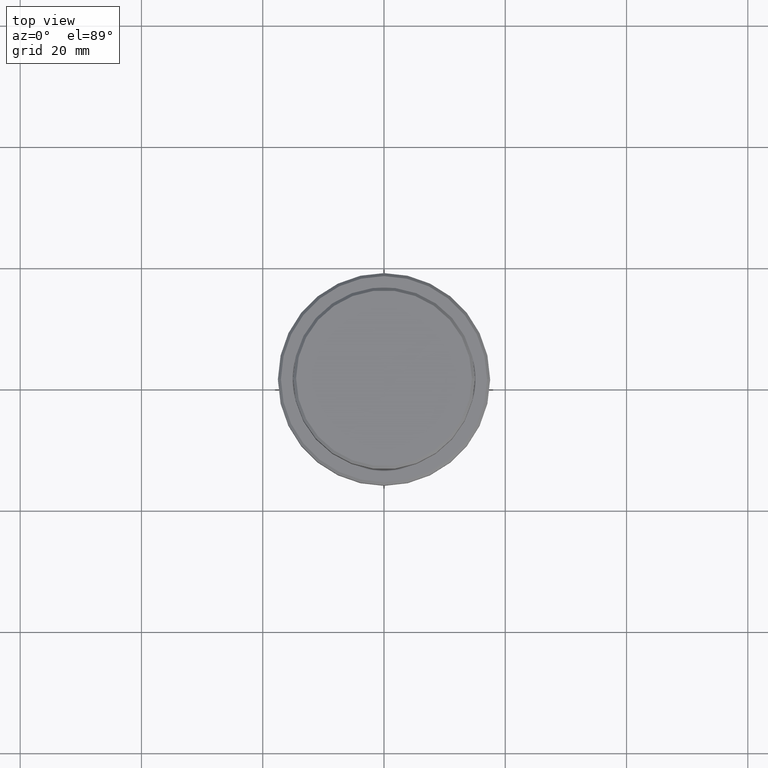
[diagram: clean part render]
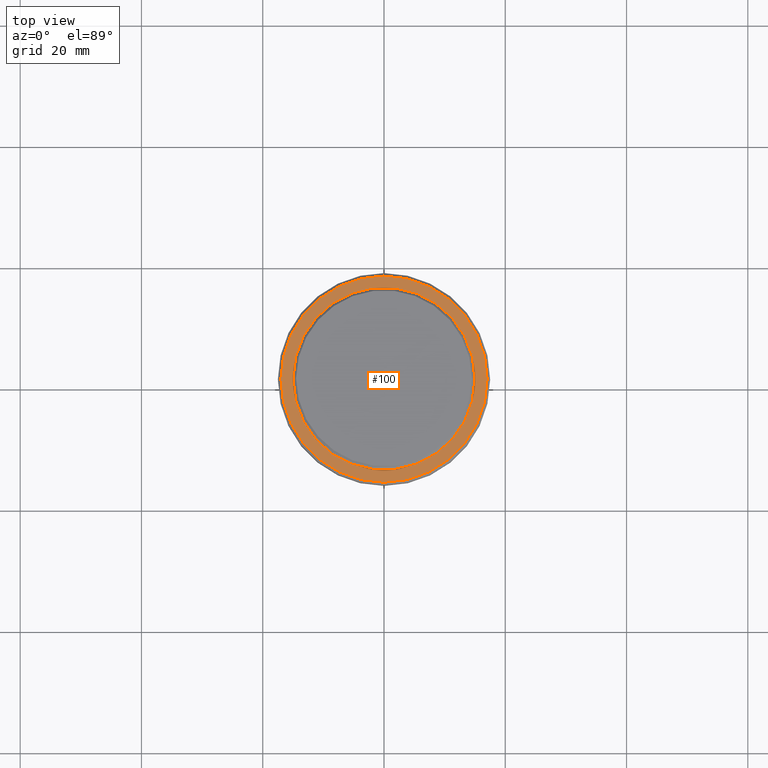
[diagram: same view with one face highlighted and labeled with its STEP entity id]
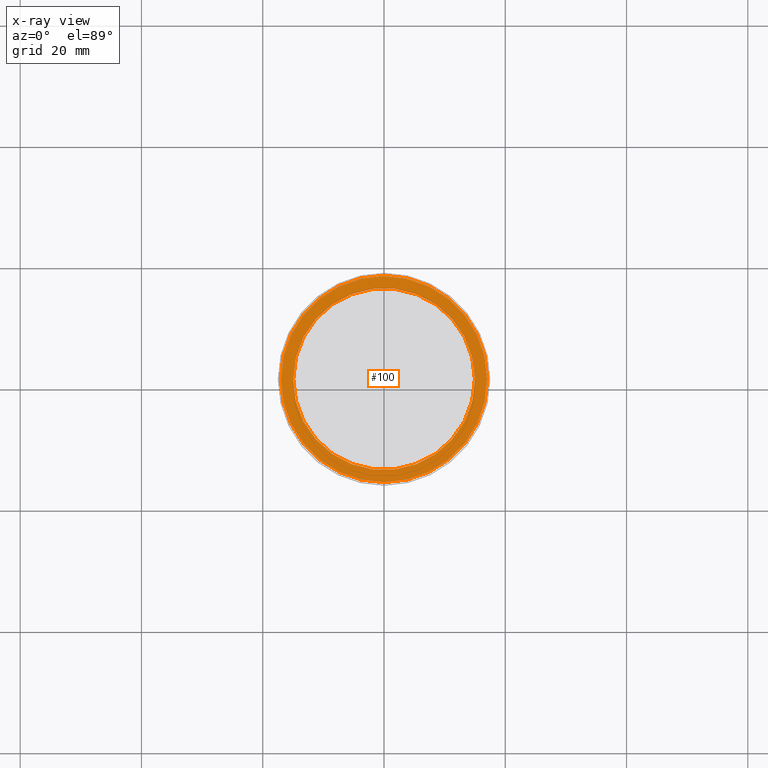
[diagram: x-ray of the same camera — body ghosted, the highlighted face saturated]
A machine part, top view. The second image highlights one B-rep face of the part: STEP entity #100.
The next image is the same camera in x-ray: the body ghosted, the highlighted face saturated — about 0% of this face is hidden behind the body in this view.
In plain terms, the highlighted planar face has unit normal (0, -0, 1).
Its self-contained STEP definition (entity closure, byte-faithful):
#14 = DIRECTION ( 'NONE',  ( 0.000000000000000000, 0.000000000000000000, -1.000000000000000000 ) ) ;
#33 = EDGE_CURVE ( 'NONE', #670, #778, #90, .T. ) ;
#90 = CIRCLE ( 'NONE', #204, 16.99999999999998579 ) ;
#100 = ADVANCED_FACE ( 'NONE', ( #565, #791 ), #892, .T. ) ;
#104 = CIRCLE ( 'NONE', #1290, 16.99999999999998579 ) ;
#109 = CIRCLE ( 'NONE', #1272, 14.99999999999999289 ) ;
#114 = EDGE_LOOP ( 'NONE', ( #200, #570 ) ) ;
#136 = CARTESIAN_POINT ( 'NONE',  ( 0.000000000000000000, 0.000000000000000000, -9.000000000000000000 ) ) ;
#175 = AXIS2_PLACEMENT_3D ( 'NONE', #768, #1198, #1211 ) ;
#189 = EDGE_LOOP ( 'NONE', ( #1313, #1302 ) ) ;
#200 = ORIENTED_EDGE ( 'NONE', *, *, #211, .T. ) ;
#204 = AXIS2_PLACEMENT_3D ( 'NONE', #910, #656, #774 ) ;
#211 = EDGE_CURVE ( 'NONE', #778, #670, #104, .T. ) ;
#330 = DIRECTION ( 'NONE',  ( 1.000000000000000000, 0.000000000000000000, 0.000000000000000000 ) ) ;
#439 = CARTESIAN_POINT ( 'NONE',  ( 0.000000000000000000, 0.000000000000000000, -9.000000000000000000 ) ) ;
#481 = VERTEX_POINT ( 'NONE', #1142 ) ;
#538 = CIRCLE ( 'NONE', #1332, 14.99999999999999289 ) ;
#565 = FACE_OUTER_BOUND ( 'NONE', #114, .T. ) ;
#570 = ORIENTED_EDGE ( 'NONE', *, *, #33, .T. ) ;
#593 = VERTEX_POINT ( 'NONE', #1372 ) ;
#656 = DIRECTION ( 'NONE',  ( -0.000000000000000000, -0.000000000000000000, 1.000000000000000000 ) ) ;
#670 = VERTEX_POINT ( 'NONE', #964 ) ;
#684 = EDGE_CURVE ( 'NONE', #593, #481, #538, .T. ) ;
#768 = CARTESIAN_POINT ( 'NONE',  ( 0.000000000000000000, 14.49999999999999467, -9.000000000000000000 ) ) ;
#774 = DIRECTION ( 'NONE',  ( 1.000000000000000000, 0.000000000000000000, 0.000000000000000000 ) ) ;
#778 = VERTEX_POINT ( 'NONE', #1083 ) ;
#791 = FACE_BOUND ( 'NONE', #189, .T. ) ;
#889 = DIRECTION ( 'NONE',  ( 1.000000000000000000, 0.000000000000000000, 0.000000000000000000 ) ) ;
#892 = PLANE ( 'NONE',  #175 ) ;
#910 = CARTESIAN_POINT ( 'NONE',  ( 0.000000000000000000, 0.000000000000000000, -9.000000000000000000 ) ) ;
#947 = DIRECTION ( 'NONE',  ( 1.000000000000000000, 0.000000000000000000, 0.000000000000000000 ) ) ;
#964 = CARTESIAN_POINT ( 'NONE',  ( 16.99999999999998579, 2.112515728529183278E-15, -9.000000000000000000 ) ) ;
#1083 = CARTESIAN_POINT ( 'NONE',  ( -16.99999999999998579, 0.000000000000000000, -9.000000000000000000 ) ) ;
#1120 = DIRECTION ( 'NONE',  ( -0.000000000000000000, -0.000000000000000000, 1.000000000000000000 ) ) ;
#1138 = CARTESIAN_POINT ( 'NONE',  ( 0.000000000000000000, 0.000000000000000000, -9.000000000000000000 ) ) ;
#1142 = CARTESIAN_POINT ( 'NONE',  ( 14.99999999999999289, 0.000000000000000000, -9.000000000000000000 ) ) ;
#1198 = DIRECTION ( 'NONE',  ( 0.000000000000000000, -0.000000000000000000, 1.000000000000000000 ) ) ;
#1211 = DIRECTION ( 'NONE',  ( 1.000000000000000000, 0.000000000000000000, 0.000000000000000000 ) ) ;
#1272 = AXIS2_PLACEMENT_3D ( 'NONE', #136, #14, #889 ) ;
#1286 = DIRECTION ( 'NONE',  ( 0.000000000000000000, 0.000000000000000000, -1.000000000000000000 ) ) ;
#1290 = AXIS2_PLACEMENT_3D ( 'NONE', #1138, #1120, #947 ) ;
#1302 = ORIENTED_EDGE ( 'NONE', *, *, #684, .T. ) ;
#1309 = EDGE_CURVE ( 'NONE', #481, #593, #109, .T. ) ;
#1313 = ORIENTED_EDGE ( 'NONE', *, *, #1309, .T. ) ;
#1332 = AXIS2_PLACEMENT_3D ( 'NONE', #439, #1286, #330 ) ;
#1372 = CARTESIAN_POINT ( 'NONE',  ( -14.99999999999999289, 1.836970198721028800E-15, -9.000000000000000000 ) ) ;